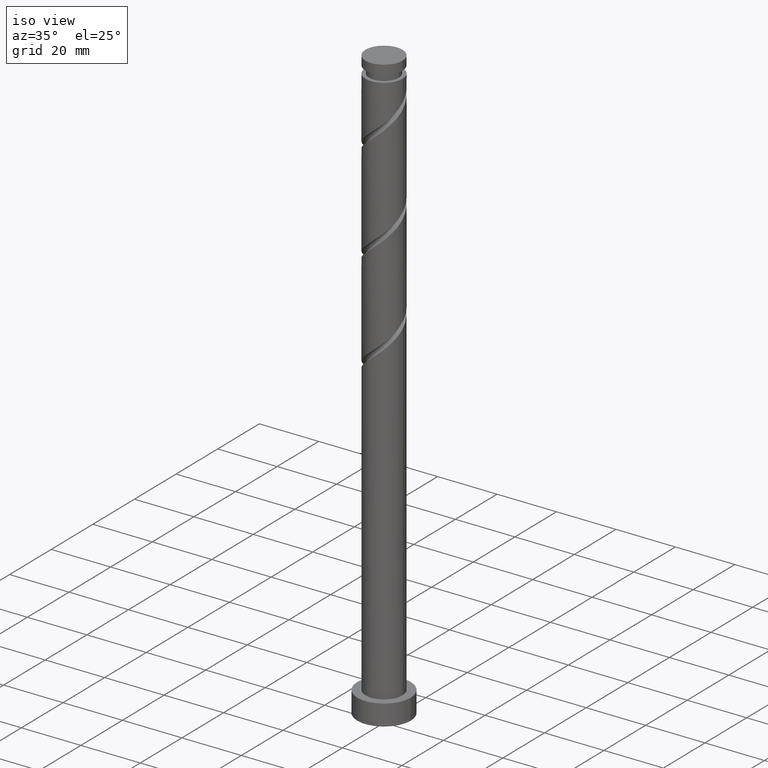
[diagram: clean part render]
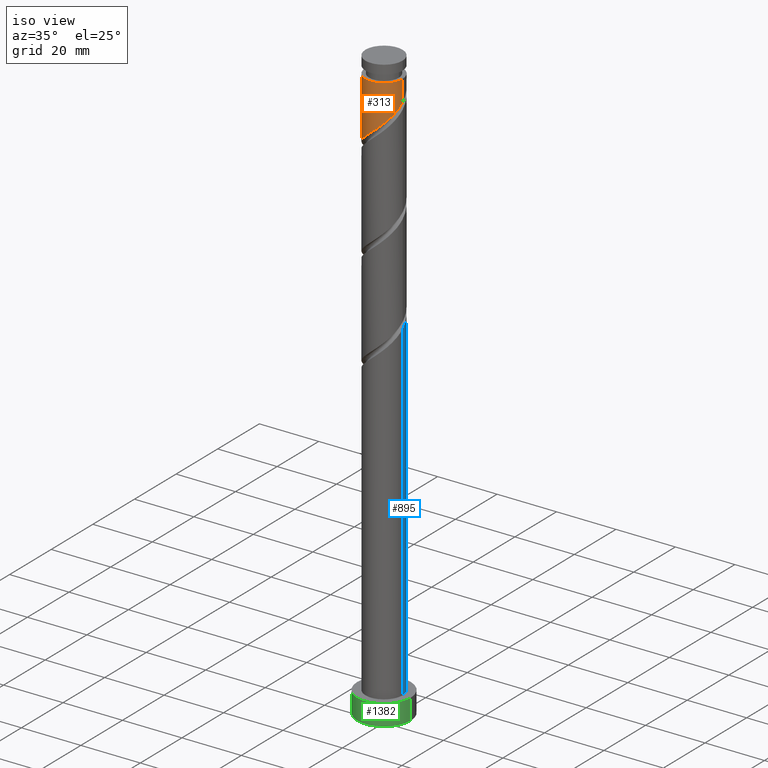
[diagram: same view with three faces highlighted in distinct colors, each labeled with its STEP entity id]
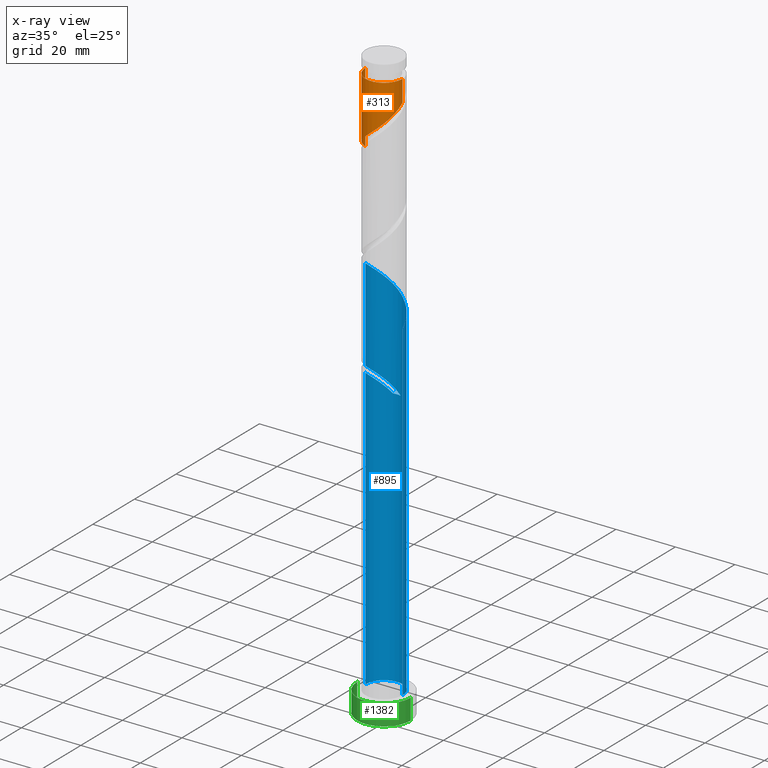
[diagram: x-ray of the same camera — body ghosted, the three highlighted faces saturated]
A machine part, iso view with three faces highlighted in distinct colors.
The next image is the same camera in x-ray (body ghosted, the three faces saturated) — at least one of them is partly hidden behind the body in this view.
Their STEP definitions:

[orange] entity #313 — the highlighted cylindrical surface (edge-blend (fillet) strip) has radius 6.25 mm, axis along (-0, -0, -1).
#42 = LINE ( 'NONE', #585, #1359 ) ;
#52 = CARTESIAN_POINT ( 'NONE',  ( 1.205185895330212587, -6.187654891489475339, 179.8950919426566770 ) ) ;
#74 = CARTESIAN_POINT ( 'NONE',  ( -6.187654891489475339, -1.205185895330214807, 171.5617586093233626 ) ) ;
#129 = CARTESIAN_POINT ( 'NONE',  ( 4.137549047383397571, -4.756073378215821990, 182.6728697204344769 ) ) ;
#151 = CIRCLE ( 'NONE', #887, 6.249999999999988454 ) ;
#204 = CARTESIAN_POINT ( 'NONE',  ( -2.786621729171010919, -5.594393563069364639, 176.4228697204344769 ) ) ;
#211 = CARTESIAN_POINT ( 'NONE',  ( 2.765603112218015802, -5.664890601253175006, 181.2839808315455628 ) ) ;
#255 = CARTESIAN_POINT ( 'NONE',  ( 5.594393563069363751, -2.786621729171014028, 184.7562030537677913 ) ) ;
#292 = CARTESIAN_POINT ( 'NONE',  ( 6.125000000000000000, -1.243734296383278481, 186.1450919426566486 ) ) ;
#299 = CARTESIAN_POINT ( 'NONE',  ( -6.238197808971717606, -0.3839115733348686388, 170.8673141648789056 ) ) ;
#313 = ADVANCED_FACE ( 'NONE', ( #1057 ), #1585, .T. ) ;
#337 = DIRECTION ( 'NONE',  ( -0.000000000000000000, -0.000000000000000000, -1.000000000000000000 ) ) ;
#357 = CARTESIAN_POINT ( 'NONE',  ( 6.250000000000000000, 7.654042494670957606E-16, 200.0000000000000000 ) ) ;
#367 = CARTESIAN_POINT ( 'NONE',  ( -6.250000000000000000, -2.930941750949562457E-15, 170.5419919312001298 ) ) ;
#425 = EDGE_CURVE ( 'NONE', #821, #1556, #42, .T. ) ;
#428 = CARTESIAN_POINT ( 'NONE',  ( 6.250000000000000000, 1.345840599925819351E-15, 187.2086585978667301 ) ) ;
#507 = VERTEX_POINT ( 'NONE', #1594 ) ;
#583 = EDGE_CURVE ( 'NONE', #507, #821, #151, .T. ) ;
#585 = CARTESIAN_POINT ( 'NONE',  ( -6.250000000000000000, 0.000000000000000000, 200.0000000000000000 ) ) ;
#596 = CARTESIAN_POINT ( 'NONE',  ( -1.243734296383278259, -6.125000000000000000, 177.8117586093233911 ) ) ;
#606 = CARTESIAN_POINT ( 'NONE',  ( 1.985394503774115860, -5.926272746371323841, 180.5895363871011909 ) ) ;
#658 = DIRECTION ( 'NONE',  ( -1.000000000000000000, 0.000000000000000000, 0.000000000000000000 ) ) ;
#674 = CARTESIAN_POINT ( 'NONE',  ( 3.451576079800705799, -5.210481989734499386, 181.9784252759900198 ) ) ;
#684 = VERTEX_POINT ( 'NONE', #1281 ) ;
#730 = CARTESIAN_POINT ( 'NONE',  ( -3.523137614235942294, -5.227527852592697144, 175.7284252759900198 ) ) ;
#810 = CARTESIAN_POINT ( 'NONE',  ( 5.227527852592693591, -3.523137614235945403, 184.0617586093233058 ) ) ;
#821 = VERTEX_POINT ( 'NONE', #902 ) ;
#871 = CARTESIAN_POINT ( 'NONE',  ( -6.250000000000000000, -0.1921371978604675124, 170.7051556192282362 ) ) ;
#885 = CARTESIAN_POINT ( 'NONE',  ( -0.4373627486604795278, -6.288740726453962537, 178.5062030537677629 ) ) ;
#887 = AXIS2_PLACEMENT_3D ( 'NONE', #1347, #945, #658 ) ;
#902 = CARTESIAN_POINT ( 'NONE',  ( -6.249999999999988454, 0.000000000000000000, 194.4784252759900198 ) ) ;
#945 = DIRECTION ( 'NONE',  ( -0.000000000000000000, -0.000000000000000000, -1.000000000000000000 ) ) ;
#957 = ORIENTED_EDGE ( 'NONE', *, *, #425, .T. ) ;
#996 = CARTESIAN_POINT ( 'NONE',  ( -2.050105844106078656, -5.961259273546039239, 177.1173141648789340 ) ) ;
#1013 = CARTESIAN_POINT ( 'NONE',  ( -5.210481989734496722, -3.451576079800708019, 173.6450919426567054 ) ) ;
#1027 = DIRECTION ( 'NONE',  ( -0.000000000000000000, -0.000000000000000000, -1.000000000000000000 ) ) ;
#1048 = DIRECTION ( 'NONE',  ( -1.000000000000000000, 0.000000000000000000, 0.000000000000000000 ) ) ;
#1057 = FACE_OUTER_BOUND ( 'NONE', #1549, .T. ) ;
#1100 = EDGE_CURVE ( 'NONE', #684, #1556, #1716, .T. ) ;
#1126 = CARTESIAN_POINT ( 'NONE',  ( -4.756073378215821990, -4.137549047383398459, 174.3395363871011057 ) ) ;
#1134 = CARTESIAN_POINT ( 'NONE',  ( -5.926272746371323841, -1.985394503774116304, 172.2562030537677913 ) ) ;
#1164 = LINE ( 'NONE', #357, #1733 ) ;
#1176 = CARTESIAN_POINT ( 'NONE',  ( 0.000000000000000000, 0.000000000000000000, 200.0000000000000000 ) ) ;
#1240 = ORIENTED_EDGE ( 'NONE', *, *, #1100, .F. ) ;
#1255 = CARTESIAN_POINT ( 'NONE',  ( -4.139605496225883918, -4.682538449988046025, 175.0339808315456196 ) ) ;
#1260 = DIRECTION ( 'NONE',  ( -0.000000000000000000, -0.000000000000000000, -1.000000000000000000 ) ) ;
#1281 = CARTESIAN_POINT ( 'NONE',  ( 6.250000000000000000, 1.345840599925819351E-15, 187.2086585978667586 ) ) ;
#1292 = ORIENTED_EDGE ( 'NONE', *, *, #1309, .F. ) ;
#1309 = EDGE_CURVE ( 'NONE', #507, #684, #1164, .T. ) ;
#1338 = CARTESIAN_POINT ( 'NONE',  ( 4.682538449988046025, -4.139605496225884806, 183.3673141648789340 ) ) ;
#1347 = CARTESIAN_POINT ( 'NONE',  ( 0.000000000000000000, 0.000000000000000000, 194.4784252759900198 ) ) ;
#1359 = VECTOR ( 'NONE', #1260, 1000.000000000000000 ) ;
#1372 = CARTESIAN_POINT ( 'NONE',  ( 5.961259273546034798, -2.050105844106081765, 185.4506474982123052 ) ) ;
#1387 = AXIS2_PLACEMENT_3D ( 'NONE', #1176, #337, #1048 ) ;
#1400 = CARTESIAN_POINT ( 'NONE',  ( -6.250000000000000000, -2.930941750949562457E-15, 170.5419919312001298 ) ) ;
#1409 = CARTESIAN_POINT ( 'NONE',  ( 0.3839115733348669735, -6.238197808971718494, 179.2006474982121915 ) ) ;
#1504 = CARTESIAN_POINT ( 'NONE',  ( 6.250000000000000888, -0.6281486345370174140, 186.6752322286774586 ) ) ;
#1545 = CARTESIAN_POINT ( 'NONE',  ( -5.664890601253175006, -2.765603112218015802, 172.9506474982122484 ) ) ;
#1549 = EDGE_LOOP ( 'NONE', ( #1292, #1635, #957, #1240 ) ) ;
#1556 = VERTEX_POINT ( 'NONE', #367 ) ;
#1585 = CYLINDRICAL_SURFACE ( 'NONE', #1387, 6.250000000000000000 ) ;
#1594 = CARTESIAN_POINT ( 'NONE',  ( 6.249999999999988454, 7.654042494670950704E-16, 194.4784252759900198 ) ) ;
#1635 = ORIENTED_EDGE ( 'NONE', *, *, #583, .T. ) ;
#1716 =( BOUNDED_CURVE ( )  B_SPLINE_CURVE ( 2, ( #428, #1504, #292, #1372, #255, #810, #1338, #129, #674, #211, #606, #52, #1409, #885, #596, #996, #204, #730, #1255, #1126, #1013, #1545, #1134, #74, #299, #871, #1400 ),
 .UNSPECIFIED., .F., .T. ) 
 B_SPLINE_CURVE_WITH_KNOTS ( ( 3, 2, 2, 2, 2, 2, 2, 2, 2, 2, 2, 2, 2, 3 ),
 ( 0.3045317669814463502, 0.3125000000000000000, 0.3229166666666666852, 0.3333333333333333148, 0.3437500000000000000, 0.3541666666666666852, 0.3645833333333333148, 0.3750000000000000000, 0.3854166666666666852, 0.3958333333333333148, 0.4062500000000000000, 0.4166666666666666852, 0.4270833333333333148, 0.4295317669814461281 ),
 .UNSPECIFIED. ) 
 CURVE ( )  GEOMETRIC_REPRESENTATION_ITEM ( )  RATIONAL_B_SPLINE_CURVE ( ( 0.9062941362546365065, 0.9031415850403409218, 0.9090909090909161661, 0.9013135103398346448, 0.9090909090909161661, 0.9013135103398346448, 0.9090909090909161661, 0.9013135103398346448, 0.9090909090909161661, 0.9013135103398346448, 0.9090909090909161661, 0.9013135103398346448, 0.9090909090909161661, 0.9013135103398346448, 0.9090909090909161661, 0.9013135103398346448, 0.9090909090909161661, 0.9013135103398346448, 0.9090909090909161661, 0.9013135103398346448, 0.9090909090909161661, 0.9013135103398346448, 0.9090909090909161661, 0.9013135103398346448, 0.9090909090909161661, 0.9072628343904100001, 0.9062941362546367285 ) ) 
 REPRESENTATION_ITEM ( '' )  );
#1733 = VECTOR ( 'NONE', #1027, 1000.000000000000000 ) ;

[blue] entity #895 — the highlighted cylindrical surface (edge-blend (fillet) strip) has radius 6.25 mm, axis along (-0, -0, -1).
#1 = CARTESIAN_POINT ( 'NONE',  ( -1.985394503774116748, 5.926272746371323841, 97.25620305376779129 ) ) ;
#35 = CARTESIAN_POINT ( 'NONE',  ( -6.238197808971729152, 0.3839115733348724691, 134.7562030537678481 ) ) ;
#47 = CARTESIAN_POINT ( 'NONE',  ( -3.523137614235947179, 5.227527852592706026, 129.8950919426567054 ) ) ;
#55 = CARTESIAN_POINT ( 'NONE',  ( -3.523137614235947179, 5.227527852592706026, 96.56175860932337685 ) ) ;
#57 = ORIENTED_EDGE ( 'NONE', *, *, #659, .T. ) ;
#64 = CARTESIAN_POINT ( 'NONE',  ( 0.3839115733348765214, 6.238197808971730041, 126.4228697204344769 ) ) ;
#66 = AXIS2_PLACEMENT_3D ( 'NONE', #1569, #629, #1582 ) ;
#70 = CARTESIAN_POINT ( 'NONE',  ( -6.250000000000009770, 0.1921371978604524688, 134.9183615994184890 ) ) ;
#83 =( BOUNDED_CURVE ( )  B_SPLINE_CURVE ( 2, ( #608, #1121, #1264, #55, #863, #854, #330, #1686, #617, #1402, #1147, #173, #1007 ),
 .UNSPECIFIED., .F., .T. ) 
 B_SPLINE_CURVE_WITH_KNOTS ( ( 3, 2, 2, 2, 2, 2, 3 ),
 ( 0.000000000000000000, 0.01041666666666662966, 0.02083333333333337034, 0.03125000000000000000, 0.04166666666666662966, 0.05208333333333336340, 0.05453176698144639872 ),
 .UNSPECIFIED. ) 
 CURVE ( )  GEOMETRIC_REPRESENTATION_ITEM ( )  RATIONAL_B_SPLINE_CURVE ( ( 0.9090909090909224943, 0.9013135103398410841, 0.9090909090909224943, 0.9013135103398410841, 0.9090909090909224943, 0.9013135103398410841, 0.9090909090909224943, 0.9013135103398410841, 0.9090909090909224943, 0.9013135103398410841, 0.9090909090909224943, 0.9072628343904162174, 0.9062941362546428348 ) ) 
 REPRESENTATION_ITEM ( '' )  );
#90 = EDGE_CURVE ( 'NONE', #365, #1308, #83, .T. ) ;
#114 = EDGE_CURVE ( 'NONE', #392, #1367, #1293, .T. ) ;
#137 = CARTESIAN_POINT ( 'NONE',  ( 0.4373627486604777515, 6.288740726453959873, 95.17286972043444848 ) ) ;
#147 = CARTESIAN_POINT ( 'NONE',  ( -2.765603112218016690, 5.664890601253175006, 97.95064749821226258 ) ) ;
#150 = CARTESIAN_POINT ( 'NONE',  ( -6.250000000000000000, 0.000000000000000000, 7.000000000000000000 ) ) ;
#173 = CARTESIAN_POINT ( 'NONE',  ( -6.250000000000010658, 0.1921371978604529684, 101.5850282660851605 ) ) ;
#182 = ORIENTED_EDGE ( 'NONE', *, *, #1162, .T. ) ;
#187 = DIRECTION ( 'NONE',  ( -0.000000000000000000, -0.000000000000000000, -1.000000000000000000 ) ) ;
#189 = CARTESIAN_POINT ( 'NONE',  ( 5.961259273546051674, 2.050105844106077768, 120.1728697204344911 ) ) ;
#193 = EDGE_CURVE ( 'NONE', #1367, #1677, #758, .T. ) ;
#207 = CARTESIAN_POINT ( 'NONE',  ( -5.664890601253182112, 2.765603112218023352, 132.6728697204344485 ) ) ;
#212 = DIRECTION ( 'NONE',  ( 0.000000000000000000, 1.000000000000000000, -4.440892098500626162E-15 ) ) ;
#241 = DIRECTION ( 'NONE',  ( -0.000000000000000000, -0.000000000000000000, -1.000000000000000000 ) ) ;
#246 = CARTESIAN_POINT ( 'NONE',  ( -6.250000000000009770, -4.845026159732916609E-15, 135.0815252874466239 ) ) ;
#254 = AXIS2_PLACEMENT_3D ( 'NONE', #607, #862, #212 ) ;
#282 = CARTESIAN_POINT ( 'NONE',  ( -6.250000000000000888, 0.6281486345370133062, 103.3418988953441300 ) ) ;
#286 = ORIENTED_EDGE ( 'NONE', *, *, #445, .T. ) ;
#294 = CARTESIAN_POINT ( 'NONE',  ( -0.4373627486604709236, 6.288740726453970531, 127.1173141648789198 ) ) ;
#303 = CARTESIAN_POINT ( 'NONE',  ( 6.125000000000009770, 1.243734296383277593, 119.4784252759900482 ) ) ;
#330 = CARTESIAN_POINT ( 'NONE',  ( -5.210481989734508268, 3.451576079800716013, 98.64509194265664860 ) ) ;
#365 = VERTEX_POINT ( 'NONE', #1253 ) ;
#381 = CARTESIAN_POINT ( 'NONE',  ( 6.250000000000009770, 8.972270666172067868E-16, 118.4148586207799667 ) ) ;
#392 = VERTEX_POINT ( 'NONE', #381 ) ;
#418 = CARTESIAN_POINT ( 'NONE',  ( -6.250000000000000000, 0.000000000000000000, 200.0000000000000000 ) ) ;
#445 = EDGE_CURVE ( 'NONE', #515, #993, #663, .T. ) ;
#462 = CARTESIAN_POINT ( 'NONE',  ( 4.137549047383411782, 4.756073378215824654, 122.9506474982122484 ) ) ;
#485 = CARTESIAN_POINT ( 'NONE',  ( -6.250000000000000000, 0.000000000000000000, 200.0000000000000000 ) ) ;
#488 = VECTOR ( 'NONE', #817, 1000.000000000000000 ) ;
#506 =( BOUNDED_CURVE ( )  B_SPLINE_CURVE ( 2, ( #700, #282, #1502, #1370, #831, #1628, #1226, #689, #554, #147, #1, #562, #1745, #137, #1473 ),
 .UNSPECIFIED., .F., .T. ) 
 B_SPLINE_CURVE_WITH_KNOTS ( ( 3, 2, 2, 2, 2, 2, 2, 3 ),
 ( 0.9295317669814463502, 0.9375000000000000000, 0.9479166666666666297, 0.9583333333333333703, 0.9687500000000000000, 0.9791666666666666297, 0.9895833333333333703, 1.000000000000000000 ),
 .UNSPECIFIED. ) 
 CURVE ( )  GEOMETRIC_REPRESENTATION_ITEM ( )  RATIONAL_B_SPLINE_CURVE ( ( 0.9062941362546365065, 0.9031415850403408108, 0.9090909090909161661, 0.9013135103398346448, 0.9090909090909161661, 0.9013135103398346448, 0.9090909090909161661, 0.9013135103398346448, 0.9090909090909161661, 0.9013135103398346448, 0.9090909090909161661, 0.9013135103398346448, 0.9090909090909161661, 0.9013135103398346448, 0.9090909090909161661 ) ) 
 REPRESENTATION_ITEM ( '' )  );
#508 = CARTESIAN_POINT ( 'NONE',  ( -6.250000000000009770, -4.845026159732916609E-15, 101.7481919541133095 ) ) ;
#510 = FACE_OUTER_BOUND ( 'NONE', #1385, .T. ) ;
#515 = VERTEX_POINT ( 'NONE', #1604 ) ;
#554 = CARTESIAN_POINT ( 'NONE',  ( -3.451576079800709351, 5.210481989734498498, 98.64509194265669123 ) ) ;
#562 = CARTESIAN_POINT ( 'NONE',  ( -1.205185895330217027, 6.187654891489475339, 96.56175860932337685 ) ) ;
#580 = CARTESIAN_POINT ( 'NONE',  ( -2.050105844106078656, 5.961259273546049897, 128.5062030537677913 ) ) ;
#607 = CARTESIAN_POINT ( 'NONE',  ( 0.000000000000000000, 0.000000000000000000, 94.47842527599004825 ) ) ;
#608 = CARTESIAN_POINT ( 'NONE',  ( -1.243734296383276705, 6.125000000000008882, 94.47842527599001983 ) ) ;
#617 = CARTESIAN_POINT ( 'NONE',  ( -5.926272746371334499, 1.985394503774122743, 100.0339808315455912 ) ) ;
#619 = ORIENTED_EDGE ( 'NONE', *, *, #1659, .F. ) ;
#629 = DIRECTION ( 'NONE',  ( -0.000000000000000000, -0.000000000000000000, -1.000000000000000000 ) ) ;
#659 = EDGE_CURVE ( 'NONE', #365, #1489, #1644, .T. ) ;
#663 = CIRCLE ( 'NONE', #776, 6.250000000000000000 ) ;
#664 = CARTESIAN_POINT ( 'NONE',  ( -6.249999999999999112, 7.895598186231474471E-15, 103.8753252645334157 ) ) ;
#689 = CARTESIAN_POINT ( 'NONE',  ( -4.137549047383399348, 4.756073378215821990, 99.33953638710110567 ) ) ;
#690 = VECTOR ( 'NONE', #241, 1000.000000000000000 ) ;
#700 = CARTESIAN_POINT ( 'NONE',  ( -6.249999999999999112, 7.895598186231474471E-15, 103.8753252645334157 ) ) ;
#713 = CARTESIAN_POINT ( 'NONE',  ( 2.765603112218026016, 5.664890601253181224, 124.3395363871011341 ) ) ;
#724 = CARTESIAN_POINT ( 'NONE',  ( 1.985394503774124075, 5.926272746371332723, 125.0339808315456054 ) ) ;
#750 = CARTESIAN_POINT ( 'NONE',  ( -6.187654891489485998, 1.205185895330220136, 134.0617586093233626 ) ) ;
#753 = ORIENTED_EDGE ( 'NONE', *, *, #1009, .F. ) ;
#758 = LINE ( 'NONE', #485, #690 ) ;
#776 = AXIS2_PLACEMENT_3D ( 'NONE', #1478, #1114, #1124 ) ;
#784 = ORIENTED_EDGE ( 'NONE', *, *, #114, .F. ) ;
#817 = DIRECTION ( 'NONE',  ( -0.000000000000000000, -0.000000000000000000, -1.000000000000000000 ) ) ;
#831 = CARTESIAN_POINT ( 'NONE',  ( -5.594393563069364639, 2.786621729171010919, 101.4228697204344627 ) ) ;
#848 = CARTESIAN_POINT ( 'NONE',  ( -4.756073378215829095, 4.137549047383409118, 131.2839808315455912 ) ) ;
#854 = CARTESIAN_POINT ( 'NONE',  ( -4.756073378215829095, 4.137549047383409118, 97.95064749821223415 ) ) ;
#862 = DIRECTION ( 'NONE',  ( -1.848892746611745018E-30, -5.551115123125782702E-15, -1.000000000000000000 ) ) ;
#863 = CARTESIAN_POINT ( 'NONE',  ( -4.139605496225888359, 4.682538449988056684, 97.25620305376780550 ) ) ;
#880 = CARTESIAN_POINT ( 'NONE',  ( -1.243734296383277149, 6.125000000000009770, 127.8117586093233911 ) ) ;
#895 = ADVANCED_FACE ( 'NONE', ( #510 ), #1593, .T. ) ;
#918 = ORIENTED_EDGE ( 'NONE', *, *, #90, .F. ) ;
#979 = LINE ( 'NONE', #418, #488 ) ;
#993 = VERTEX_POINT ( 'NONE', #150 ) ;
#1007 = CARTESIAN_POINT ( 'NONE',  ( -6.250000000000009770, -4.845026159732916609E-15, 101.7481919541133095 ) ) ;
#1009 = EDGE_CURVE ( 'NONE', #1308, #993, #979, .T. ) ;
#1022 = CARTESIAN_POINT ( 'NONE',  ( 1.205185895330223689, 6.187654891489485109, 125.7284252759900198 ) ) ;
#1090 = VECTOR ( 'NONE', #187, 1000.000000000000000 ) ;
#1114 = DIRECTION ( 'NONE',  ( 0.000000000000000000, 0.000000000000000000, 1.000000000000000000 ) ) ;
#1121 = CARTESIAN_POINT ( 'NONE',  ( -2.050105844106078656, 5.961259273546049897, 95.17286972043446269 ) ) ;
#1124 = DIRECTION ( 'NONE',  ( 1.000000000000000000, 0.000000000000000000, 0.000000000000000000 ) ) ;
#1136 = CARTESIAN_POINT ( 'NONE',  ( 5.594393563069378850, 2.786621729171010475, 120.8673141648789482 ) ) ;
#1142 = CARTESIAN_POINT ( 'NONE',  ( 6.250000000000000000, 7.654042494670957606E-16, 200.0000000000000000 ) ) ;
#1147 = CARTESIAN_POINT ( 'NONE',  ( -6.238197808971729152, 0.3839115733348724691, 101.4228697204345053 ) ) ;
#1162 = EDGE_CURVE ( 'NONE', #392, #515, #1525, .T. ) ;
#1226 = CARTESIAN_POINT ( 'NONE',  ( -4.682538449988047802, 4.139605496225883030, 100.0339808315455912 ) ) ;
#1249 = CARTESIAN_POINT ( 'NONE',  ( -5.210481989734508268, 3.451576079800716013, 131.9784252759900767 ) ) ;
#1253 = CARTESIAN_POINT ( 'NONE',  ( -1.243734296383276705, 6.125000000000008882, 94.47842527599001983 ) ) ;
#1258 = CARTESIAN_POINT ( 'NONE',  ( 6.250000000000004441, 0.6281486345370267399, 118.9482849899692241 ) ) ;
#1264 = CARTESIAN_POINT ( 'NONE',  ( -2.786621729171014028, 5.594393563069377961, 95.86731416487889135 ) ) ;
#1274 = CARTESIAN_POINT ( 'NONE',  ( 6.250000000000009770, 8.972270666172067868E-16, 118.4148586207799667 ) ) ;
#1282 = CARTESIAN_POINT ( 'NONE',  ( -4.139605496225888359, 4.682538449988056684, 130.5895363871011909 ) ) ;
#1293 =( BOUNDED_CURVE ( )  B_SPLINE_CURVE ( 2, ( #1274, #1258, #303, #189, #1136, #1383, #1674, #462, #1539, #713, #724, #1022, #64, #294, #880, #580, #1411, #47, #1282, #848, #1249, #207, #1665, #750, #35, #70, #1654 ),
 .UNSPECIFIED., .F., .T. ) 
 B_SPLINE_CURVE_WITH_KNOTS ( ( 3, 2, 2, 2, 2, 2, 2, 2, 2, 2, 2, 2, 2, 3 ),
 ( 0.1795317669814466000, 0.1875000000000000000, 0.1979166666666666297, 0.2083333333333333703, 0.2187500000000000000, 0.2291666666666666297, 0.2395833333333333703, 0.2500000000000000000, 0.2604166666666666297, 0.2708333333333333703, 0.2812500000000000000, 0.2916666666666666297, 0.3020833333333333703, 0.3045317669814464057 ),
 .UNSPECIFIED. ) 
 CURVE ( )  GEOMETRIC_REPRESENTATION_ITEM ( )  RATIONAL_B_SPLINE_CURVE ( ( 0.9062941362546426127, 0.9031415850403474721, 0.9090909090909224943, 0.9013135103398410841, 0.9090909090909224943, 0.9013135103398410841, 0.9090909090909224943, 0.9013135103398410841, 0.9090909090909224943, 0.9013135103398410841, 0.9090909090909224943, 0.9013135103398410841, 0.9090909090909224943, 0.9013135103398410841, 0.9090909090909224943, 0.9013135103398410841, 0.9090909090909224943, 0.9013135103398410841, 0.9090909090909224943, 0.9013135103398410841, 0.9090909090909224943, 0.9013135103398410841, 0.9090909090909224943, 0.9013135103398410841, 0.9090909090909224943, 0.9072628343904162174, 0.9062941362546428348 ) ) 
 REPRESENTATION_ITEM ( '' )  );
#1308 = VERTEX_POINT ( 'NONE', #508 ) ;
#1367 = VERTEX_POINT ( 'NONE', #246 ) ;
#1370 = CARTESIAN_POINT ( 'NONE',  ( -5.961259273546039239, 2.050105844106077768, 102.1173141648789056 ) ) ;
#1383 = CARTESIAN_POINT ( 'NONE',  ( 5.227527852592706914, 3.523137614235943627, 121.5617586093233484 ) ) ;
#1385 = EDGE_LOOP ( 'NONE', ( #784, #182, #286, #753, #918, #57, #619, #1703 ) ) ;
#1402 = CARTESIAN_POINT ( 'NONE',  ( -6.187654891489485998, 1.205185895330220136, 100.7284252759900056 ) ) ;
#1411 = CARTESIAN_POINT ( 'NONE',  ( -2.786621729171014028, 5.594393563069377961, 129.2006474982122768 ) ) ;
#1420 = CARTESIAN_POINT ( 'NONE',  ( 1.243734296383278926, 6.125000000000000000, 94.47842527599001983 ) ) ;
#1473 = CARTESIAN_POINT ( 'NONE',  ( 1.243734296383278926, 6.125000000000000000, 94.47842527599001983 ) ) ;
#1478 = CARTESIAN_POINT ( 'NONE',  ( 0.000000000000000000, 0.000000000000000000, 7.000000000000000000 ) ) ;
#1489 = VERTEX_POINT ( 'NONE', #1420 ) ;
#1502 = CARTESIAN_POINT ( 'NONE',  ( -6.125000000000000000, 1.243734296383277815, 102.8117586093233342 ) ) ;
#1525 = LINE ( 'NONE', #1142, #1090 ) ;
#1539 = CARTESIAN_POINT ( 'NONE',  ( 3.451576079800716901, 5.210481989734505603, 123.6450919426567054 ) ) ;
#1569 = CARTESIAN_POINT ( 'NONE',  ( 0.000000000000000000, 0.000000000000000000, 200.0000000000000000 ) ) ;
#1582 = DIRECTION ( 'NONE',  ( -1.000000000000000000, 0.000000000000000000, 0.000000000000000000 ) ) ;
#1593 = CYLINDRICAL_SURFACE ( 'NONE', #66, 6.250000000000000000 ) ;
#1604 = CARTESIAN_POINT ( 'NONE',  ( 6.250000000000000000, 7.654042494670957606E-16, 7.000000000000000000 ) ) ;
#1628 = CARTESIAN_POINT ( 'NONE',  ( -5.227527852592697144, 3.523137614235942294, 100.7284252759900056 ) ) ;
#1644 = CIRCLE ( 'NONE', #254, 6.250000000000000000 ) ;
#1654 = CARTESIAN_POINT ( 'NONE',  ( -6.250000000000009770, -4.845026159732916609E-15, 135.0815252874466239 ) ) ;
#1659 = EDGE_CURVE ( 'NONE', #1677, #1489, #506, .T. ) ;
#1665 = CARTESIAN_POINT ( 'NONE',  ( -5.926272746371334499, 1.985394503774122743, 133.3673141648789340 ) ) ;
#1674 = CARTESIAN_POINT ( 'NONE',  ( 4.682538449988059348, 4.139605496225884806, 122.2562030537678197 ) ) ;
#1677 = VERTEX_POINT ( 'NONE', #664 ) ;
#1686 = CARTESIAN_POINT ( 'NONE',  ( -5.664890601253182112, 2.765603112218023352, 99.33953638710111989 ) ) ;
#1703 = ORIENTED_EDGE ( 'NONE', *, *, #193, .F. ) ;
#1745 = CARTESIAN_POINT ( 'NONE',  ( -0.3839115733348693604, 6.238197808971717606, 95.86731416487890556 ) ) ;

[green] entity #1382 — the highlighted cylindrical surface (edge-blend (fillet) strip) has radius 9 mm, axis along (-0, -0, -1).
#92 = FACE_OUTER_BOUND ( 'NONE', #1189, .T. ) ;
#119 = CARTESIAN_POINT ( 'NONE',  ( 0.000000000000000000, 0.000000000000000000, 7.000000000000000000 ) ) ;
#142 = ORIENTED_EDGE ( 'NONE', *, *, #1622, .F. ) ;
#159 = CARTESIAN_POINT ( 'NONE',  ( 0.000000000000000000, 0.000000000000000000, 7.000000000000000000 ) ) ;
#160 = EDGE_CURVE ( 'NONE', #672, #1197, #1451, .T. ) ;
#213 = LINE ( 'NONE', #1441, #861 ) ;
#218 = CARTESIAN_POINT ( 'NONE',  ( -9.000000000000000000, 0.000000000000000000, 7.000000000000000000 ) ) ;
#233 = DIRECTION ( 'NONE',  ( -0.000000000000000000, -0.000000000000000000, -1.000000000000000000 ) ) ;
#243 = ORIENTED_EDGE ( 'NONE', *, *, #160, .T. ) ;
#321 = CARTESIAN_POINT ( 'NONE',  ( -9.000000000000000000, 0.000000000000000000, 0.000000000000000000 ) ) ;
#339 = AXIS2_PLACEMENT_3D ( 'NONE', #490, #637, #1294 ) ;
#364 = EDGE_CURVE ( 'NONE', #635, #495, #213, .T. ) ;
#414 = DIRECTION ( 'NONE',  ( 1.000000000000000000, 0.000000000000000000, 0.000000000000000000 ) ) ;
#430 = VECTOR ( 'NONE', #1040, 1000.000000000000000 ) ;
#490 = CARTESIAN_POINT ( 'NONE',  ( 0.000000000000000000, 0.000000000000000000, 0.000000000000000000 ) ) ;
#495 = VERTEX_POINT ( 'NONE', #850 ) ;
#610 = AXIS2_PLACEMENT_3D ( 'NONE', #119, #1063, #1729 ) ;
#635 = VERTEX_POINT ( 'NONE', #1327 ) ;
#637 = DIRECTION ( 'NONE',  ( 0.000000000000000000, 0.000000000000000000, 1.000000000000000000 ) ) ;
#672 = VERTEX_POINT ( 'NONE', #1538 ) ;
#837 = ORIENTED_EDGE ( 'NONE', *, *, #364, .F. ) ;
#850 = CARTESIAN_POINT ( 'NONE',  ( 9.000000000000000000, 1.102182119232617714E-15, 0.000000000000000000 ) ) ;
#861 = VECTOR ( 'NONE', #233, 1000.000000000000000 ) ;
#883 = ORIENTED_EDGE ( 'NONE', *, *, #1490, .T. ) ;
#900 = CYLINDRICAL_SURFACE ( 'NONE', #610, 9.000000000000000000 ) ;
#1040 = DIRECTION ( 'NONE',  ( -0.000000000000000000, -0.000000000000000000, -1.000000000000000000 ) ) ;
#1061 = CIRCLE ( 'NONE', #339, 9.000000000000000000 ) ;
#1063 = DIRECTION ( 'NONE',  ( -0.000000000000000000, -0.000000000000000000, -1.000000000000000000 ) ) ;
#1080 = DIRECTION ( 'NONE',  ( 0.000000000000000000, 0.000000000000000000, 1.000000000000000000 ) ) ;
#1189 = EDGE_LOOP ( 'NONE', ( #837, #142, #243, #883 ) ) ;
#1197 = VERTEX_POINT ( 'NONE', #321 ) ;
#1279 = CIRCLE ( 'NONE', #1708, 9.000000000000000000 ) ;
#1294 = DIRECTION ( 'NONE',  ( 1.000000000000000000, 0.000000000000000000, 0.000000000000000000 ) ) ;
#1327 = CARTESIAN_POINT ( 'NONE',  ( 9.000000000000000000, 1.102182119232617714E-15, 7.000000000000000000 ) ) ;
#1382 = ADVANCED_FACE ( 'NONE', ( #92 ), #900, .T. ) ;
#1441 = CARTESIAN_POINT ( 'NONE',  ( 9.000000000000000000, 1.102182119232617714E-15, 7.000000000000000000 ) ) ;
#1451 = LINE ( 'NONE', #218, #430 ) ;
#1490 = EDGE_CURVE ( 'NONE', #1197, #495, #1061, .T. ) ;
#1538 = CARTESIAN_POINT ( 'NONE',  ( -9.000000000000000000, 0.000000000000000000, 7.000000000000000000 ) ) ;
#1622 = EDGE_CURVE ( 'NONE', #672, #635, #1279, .T. ) ;
#1708 = AXIS2_PLACEMENT_3D ( 'NONE', #159, #1080, #414 ) ;
#1729 = DIRECTION ( 'NONE',  ( -1.000000000000000000, 0.000000000000000000, 0.000000000000000000 ) ) ;